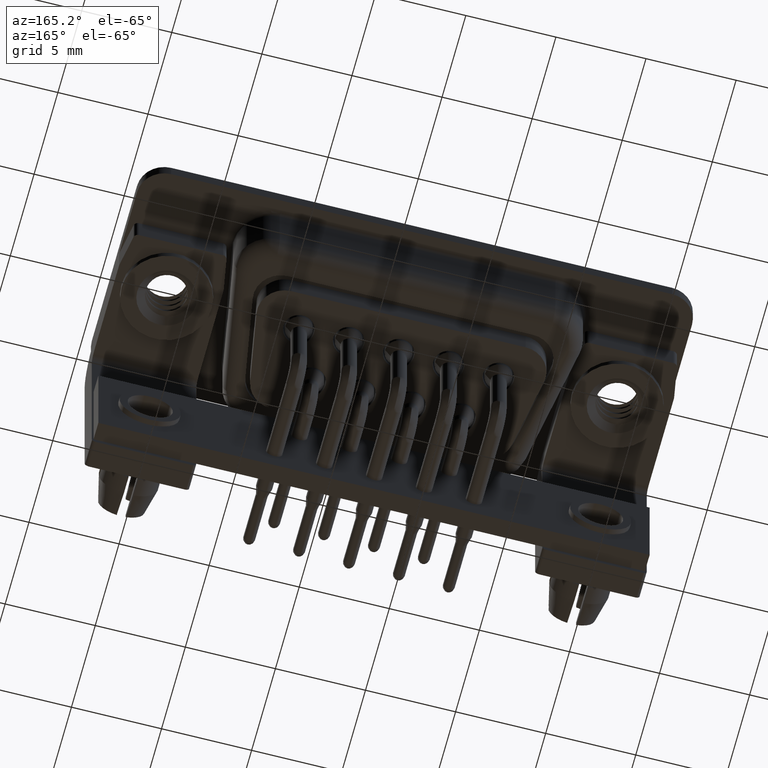
[diagram: clean part render]
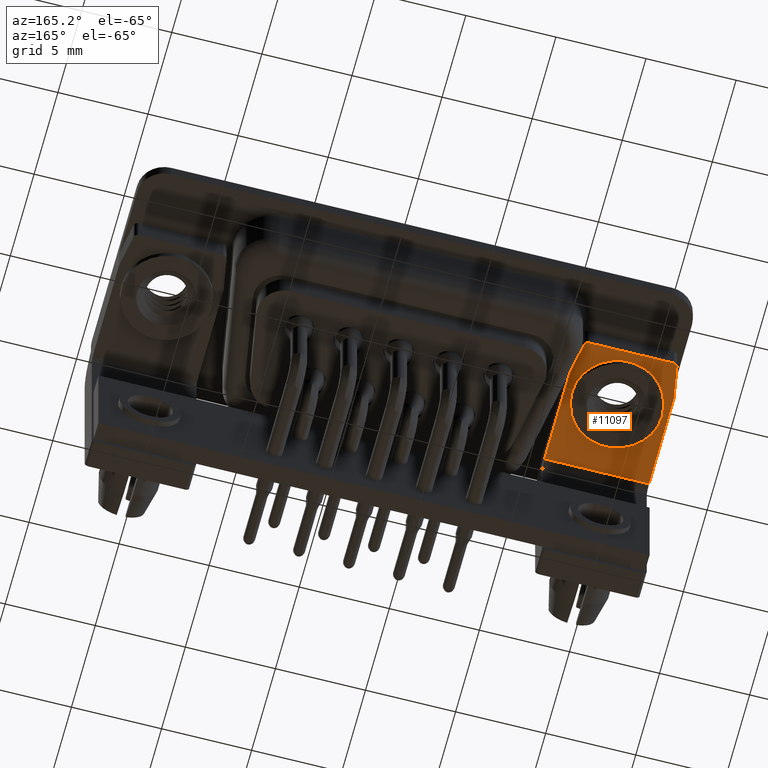
[diagram: same view with one face highlighted and labeled with its STEP entity id]
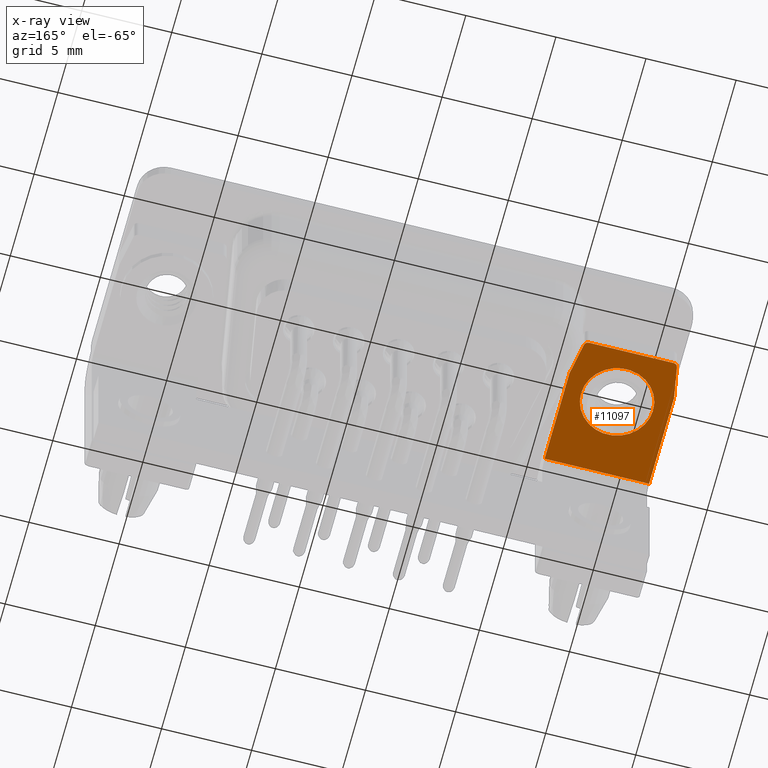
[diagram: x-ray of the same camera — body ghosted, the highlighted face saturated]
A machine part, auxiliary view. The second image highlights one B-rep face of the part: STEP entity #11097.
The next image is the same camera in x-ray: the body ghosted, the highlighted face saturated — about 0% of this face is hidden behind the body in this view.
In plain terms, the highlighted planar face has unit normal (0, 0, 1).
Its self-contained STEP definition (entity closure, byte-faithful):
#223 = CARTESIAN_POINT ( 'NONE',  ( 2.899999999999999900, 0.9781278341184813700, -1.900000000000000600 ) ) ;
#704 = CARTESIAN_POINT ( 'NONE',  ( 0.0000000000000000000, 1.388633324365570300E-018, -1.900000000000000600 ) ) ;
#738 = ORIENTED_EDGE ( 'NONE', *, *, #2822, .T. ) ;
#758 = VERTEX_POINT ( 'NONE', #1533 ) ;
#943 = FACE_OUTER_BOUND ( 'NONE', #4767, .T. ) ;
#1122 = DIRECTION ( 'NONE',  ( 0.0000000000000000000, 1.000000000000000000, 0.0000000000000000000 ) ) ;
#1210 = VERTEX_POINT ( 'NONE', #9828 ) ;
#1480 = CARTESIAN_POINT ( 'NONE',  ( 0.0000000000000000000, 1.388633324365570300E-018, -1.900000000000000600 ) ) ;
#1533 = CARTESIAN_POINT ( 'NONE',  ( 2.337571130788747900, 3.000000000000000400, -1.900000000000000600 ) ) ;
#1630 = ORIENTED_EDGE ( 'NONE', *, *, #18911, .T. ) ;
#1839 = DIRECTION ( 'NONE',  ( 0.1736481776669275300, 0.9848077530122086900, -0.0000000000000000000 ) ) ;
#1998 = AXIS2_PLACEMENT_3D ( 'NONE', #704, #11025, #2169 ) ;
#2169 = DIRECTION ( 'NONE',  ( 1.000000000000000000, 0.0000000000000000000, 0.0000000000000000000 ) ) ;
#2285 = CARTESIAN_POINT ( 'NONE',  ( 2.896201938253051700, 1.021539878535213200, -1.900000000000000600 ) ) ;
#2822 = EDGE_CURVE ( 'NONE', #7729, #12122, #7066, .T. ) ;
#2889 = VECTOR ( 'NONE', #3808, 1000.000000000000000 ) ;
#2970 = DIRECTION ( 'NONE',  ( 1.000000000000000000, 0.0000000000000000000, 0.0000000000000000000 ) ) ;
#3225 = DIRECTION ( 'NONE',  ( -1.000000000000000000, -0.0000000000000000000, -0.0000000000000000000 ) ) ;
#3581 = ORIENTED_EDGE ( 'NONE', *, *, #7022, .T. ) ;
#3664 = EDGE_CURVE ( 'NONE', #758, #12122, #14149, .T. ) ;
#3705 = DIRECTION ( 'NONE',  ( -0.0000000000000000000, -0.0000000000000000000, -1.000000000000000000 ) ) ;
#3717 = CARTESIAN_POINT ( 'NONE',  ( -2.896201938253051700, 1.021539878535213000, -1.900000000000000600 ) ) ;
#3787 = CARTESIAN_POINT ( 'NONE',  ( 2.899999999999999900, 3.000000000000000400, -1.900000000000000600 ) ) ;
#3808 = DIRECTION ( 'NONE',  ( -1.000000000000000000, -0.0000000000000000000, -0.0000000000000000000 ) ) ;
#3847 = VERTEX_POINT ( 'NONE', #2285 ) ;
#4036 = VERTEX_POINT ( 'NONE', #17428 ) ;
#4177 = VERTEX_POINT ( 'NONE', #11835 ) ;
#4688 = EDGE_CURVE ( 'NONE', #6163, #9184, #5627, .T. ) ;
#4767 = EDGE_LOOP ( 'NONE', ( #13797, #3581, #12618, #738, #14687, #9937, #17160, #13678, #13157, #1630 ) ) ;
#4802 = EDGE_CURVE ( 'NONE', #758, #4177, #11160, .T. ) ;
#4816 = CARTESIAN_POINT ( 'NONE',  ( -2.547346038583068900, 3.000000000000000400, -1.900000000000000600 ) ) ;
#4867 = AXIS2_PLACEMENT_3D ( 'NONE', #6258, #16561, #7739 ) ;
#4877 = CARTESIAN_POINT ( 'NONE',  ( 2.000000000000000000, 1.388633324365570300E-018, -1.900000000000000600 ) ) ;
#5063 = CARTESIAN_POINT ( 'NONE',  ( 2.899999999999999900, -4.249999999999999100, -1.900000000000000600 ) ) ;
#5118 = LINE ( 'NONE', #12081, #12940 ) ;
#5367 = VERTEX_POINT ( 'NONE', #5925 ) ;
#5627 = CIRCLE ( 'NONE', #10175, 2.000000000000000000 ) ;
#5925 = CARTESIAN_POINT ( 'NONE',  ( -2.899999999999999900, 0.9781278341184813700, -1.900000000000000600 ) ) ;
#6163 = VERTEX_POINT ( 'NONE', #4877 ) ;
#6246 = VECTOR ( 'NONE', #1839, 999.9999999999998900 ) ;
#6258 = CARTESIAN_POINT ( 'NONE',  ( 2.337571130788747900, 2.750000000000000900, -1.900000000000000600 ) ) ;
#6543 = DIRECTION ( 'NONE',  ( -0.0000000000000000000, -0.0000000000000000000, -1.000000000000000000 ) ) ;
#6652 = LINE ( 'NONE', #7105, #10127 ) ;
#6776 = VERTEX_POINT ( 'NONE', #223 ) ;
#6903 = CARTESIAN_POINT ( 'NONE',  ( -2.337571130788747900, 3.000000000000000400, -1.900000000000000600 ) ) ;
#7022 = EDGE_CURVE ( 'NONE', #5367, #9156, #14969, .T. ) ;
#7066 = CIRCLE ( 'NONE', #14682, 0.2500000000000002200 ) ;
#7105 = CARTESIAN_POINT ( 'NONE',  ( 2.899999999999999900, -4.249999999999999100, -1.900000000000000600 ) ) ;
#7729 = VERTEX_POINT ( 'NONE', #14021 ) ;
#7739 = DIRECTION ( 'NONE',  ( 1.000000000000000000, 1.734723475976805500E-015, 0.0000000000000000000 ) ) ;
#8038 = DIRECTION ( 'NONE',  ( 0.0000000000000000000, 0.0000000000000000000, 1.000000000000000000 ) ) ;
#8142 = EDGE_CURVE ( 'NONE', #4036, #6776, #6652, .T. ) ;
#8605 = DIRECTION ( 'NONE',  ( 0.0000000000000000000, 1.000000000000000000, 0.0000000000000000000 ) ) ;
#8764 = CARTESIAN_POINT ( 'NONE',  ( 2.899999999999999900, 0.9999999999999610300, -1.900000000000000600 ) ) ;
#8793 = FACE_BOUND ( 'NONE', #13652, .T. ) ;
#8967 = CIRCLE ( 'NONE', #1998, 2.000000000000000000 ) ;
#9156 = VERTEX_POINT ( 'NONE', #3717 ) ;
#9167 = AXIS2_PLACEMENT_3D ( 'NONE', #15349, #6543, #16853 ) ;
#9184 = VERTEX_POINT ( 'NONE', #12533 ) ;
#9828 = CARTESIAN_POINT ( 'NONE',  ( -2.899999999999999900, -4.249999999999999100, -1.900000000000001000 ) ) ;
#9876 = VECTOR ( 'NONE', #14640, 999.9999999999998900 ) ;
#9937 = ORIENTED_EDGE ( 'NONE', *, *, #4802, .T. ) ;
#9953 = VECTOR ( 'NONE', #1122, 1000.000000000000000 ) ;
#9970 = CARTESIAN_POINT ( 'NONE',  ( -2.337571130788747900, 2.750000000000000900, -1.900000000000000600 ) ) ;
#9987 = DIRECTION ( 'NONE',  ( -0.0000000000000000000, -0.0000000000000000000, -1.000000000000000000 ) ) ;
#10053 = DIRECTION ( 'NONE',  ( 1.000000000000000000, 0.0000000000000000000, 0.0000000000000000000 ) ) ;
#10127 = VECTOR ( 'NONE', #8605, 1000.000000000000000 ) ;
#10170 = LINE ( 'NONE', #4816, #6246 ) ;
#10175 = AXIS2_PLACEMENT_3D ( 'NONE', #1480, #11821, #2970 ) ;
#10982 = EDGE_CURVE ( 'NONE', #9156, #7729, #10170, .T. ) ;
#11025 = DIRECTION ( 'NONE',  ( 0.0000000000000000000, 0.0000000000000000000, 1.000000000000000000 ) ) ;
#11094 = EDGE_CURVE ( 'NONE', #3847, #6776, #17555, .T. ) ;
#11097 = ADVANCED_FACE ( 'NONE', ( #8793, #943 ), #15226, .F. ) ;
#11132 = ORIENTED_EDGE ( 'NONE', *, *, #4688, .T. ) ;
#11160 = CIRCLE ( 'NONE', #4867, 0.2500000000000002200 ) ;
#11821 = DIRECTION ( 'NONE',  ( 0.0000000000000000000, 0.0000000000000000000, 1.000000000000000000 ) ) ;
#11823 = AXIS2_PLACEMENT_3D ( 'NONE', #12520, #3705, #13981 ) ;
#11835 = CARTESIAN_POINT ( 'NONE',  ( 2.583773069041800200, 2.793412044416733000, -1.900000000000000600 ) ) ;
#12081 = CARTESIAN_POINT ( 'NONE',  ( 2.899999999999999900, -4.249999999999999100, -1.900000000000001000 ) ) ;
#12122 = VERTEX_POINT ( 'NONE', #6903 ) ;
#12133 = AXIS2_PLACEMENT_3D ( 'NONE', #5063, #8038, #18351 ) ;
#12520 = CARTESIAN_POINT ( 'NONE',  ( -2.649999999999999500, 0.9781278341184813700, -1.900000000000000600 ) ) ;
#12533 = CARTESIAN_POINT ( 'NONE',  ( -2.000000000000000000, 2.463179931538362100E-016, -1.900000000000000600 ) ) ;
#12553 = EDGE_CURVE ( 'NONE', #9184, #6163, #8967, .T. ) ;
#12618 = ORIENTED_EDGE ( 'NONE', *, *, #10982, .T. ) ;
#12940 = VECTOR ( 'NONE', #3225, 1000.000000000000000 ) ;
#13043 = EDGE_CURVE ( 'NONE', #4177, #3847, #17716, .T. ) ;
#13157 = ORIENTED_EDGE ( 'NONE', *, *, #8142, .F. ) ;
#13535 = EDGE_CURVE ( 'NONE', #1210, #5367, #13822, .T. ) ;
#13652 = EDGE_LOOP ( 'NONE', ( #11132, #14375 ) ) ;
#13678 = ORIENTED_EDGE ( 'NONE', *, *, #11094, .T. ) ;
#13797 = ORIENTED_EDGE ( 'NONE', *, *, #13535, .T. ) ;
#13822 = LINE ( 'NONE', #18804, #9953 ) ;
#13981 = DIRECTION ( 'NONE',  ( 1.000000000000000000, 0.0000000000000000000, 0.0000000000000000000 ) ) ;
#14021 = CARTESIAN_POINT ( 'NONE',  ( -2.583773069041800200, 2.793412044416733000, -1.900000000000000600 ) ) ;
#14149 = LINE ( 'NONE', #3787, #2889 ) ;
#14375 = ORIENTED_EDGE ( 'NONE', *, *, #12553, .T. ) ;
#14640 = DIRECTION ( 'NONE',  ( 0.1736481776669275300, -0.9848077530122086900, 0.0000000000000000000 ) ) ;
#14682 = AXIS2_PLACEMENT_3D ( 'NONE', #9970, #9987, #10053 ) ;
#14687 = ORIENTED_EDGE ( 'NONE', *, *, #3664, .F. ) ;
#14969 = CIRCLE ( 'NONE', #11823, 0.2500000000000002200 ) ;
#15226 = PLANE ( 'NONE',  #12133 ) ;
#15349 = CARTESIAN_POINT ( 'NONE',  ( 2.649999999999999500, 0.9781278341184813700, -1.900000000000000600 ) ) ;
#16561 = DIRECTION ( 'NONE',  ( -0.0000000000000000000, -0.0000000000000000000, -1.000000000000000000 ) ) ;
#16853 = DIRECTION ( 'NONE',  ( 1.000000000000000000, -6.938893903907222100E-015, 0.0000000000000000000 ) ) ;
#17160 = ORIENTED_EDGE ( 'NONE', *, *, #13043, .T. ) ;
#17428 = CARTESIAN_POINT ( 'NONE',  ( 2.899999999999999900, -4.249999999999999100, -1.900000000000001000 ) ) ;
#17555 = CIRCLE ( 'NONE', #9167, 0.2500000000000002200 ) ;
#17716 = LINE ( 'NONE', #8764, #9876 ) ;
#18351 = DIRECTION ( 'NONE',  ( 1.000000000000000000, 0.0000000000000000000, -0.0000000000000000000 ) ) ;
#18804 = CARTESIAN_POINT ( 'NONE',  ( -2.899999999999999900, -4.249999999999999100, -1.900000000000000600 ) ) ;
#18911 = EDGE_CURVE ( 'NONE', #4036, #1210, #5118, .T. ) ;